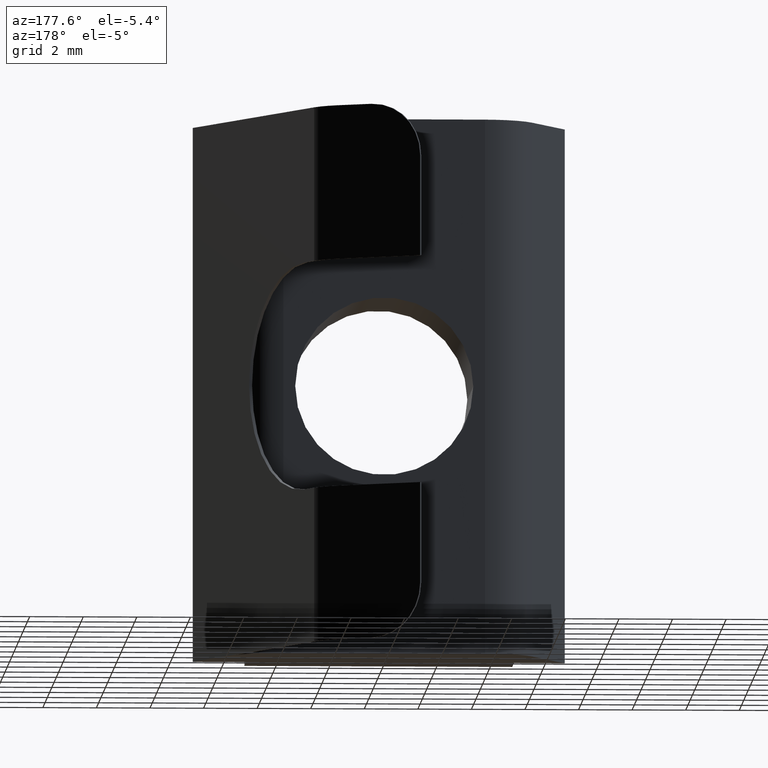
[diagram: clean part render]
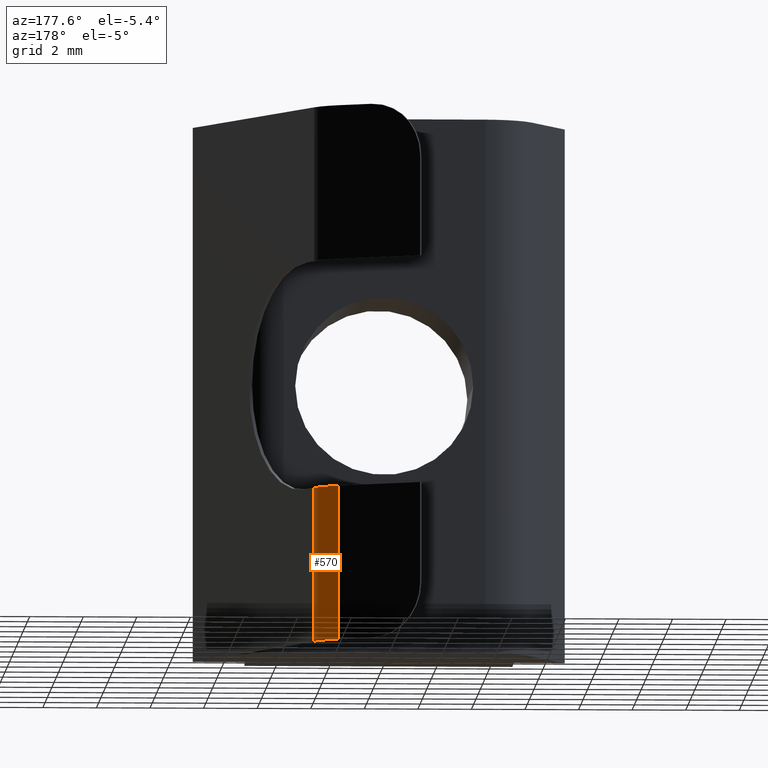
[diagram: same view with one face highlighted and labeled with its STEP entity id]
A machine part, auxiliary view. The second image highlights one B-rep face of the part: STEP entity #570.
In plain terms, the highlighted cylindrical surface (partial cylindrical patch) has radius 2 mm, axis along (0, 0, 1).
Its self-contained STEP definition (entity closure, byte-faithful):
#43=FACE_OUTER_BOUND('',#73,.T.);
#73=EDGE_LOOP('',(#420,#421,#422,#423));
#118=LINE('',#896,#182);
#119=LINE('',#899,#183);
#182=VECTOR('',#713,10.);
#183=VECTOR('',#716,10.);
#232=CIRCLE('',#625,2.);
#236=CIRCLE('',#631,2.);
#258=VERTEX_POINT('',#856);
#260=VERTEX_POINT('',#859);
#270=VERTEX_POINT('',#895);
#271=VERTEX_POINT('',#897);
#316=EDGE_CURVE('',#260,#258,#232,.T.);
#330=EDGE_CURVE('',#258,#270,#118,.T.);
#331=EDGE_CURVE('',#270,#271,#236,.T.);
#332=EDGE_CURVE('',#271,#260,#119,.T.);
#420=ORIENTED_EDGE('',*,*,#316,.T.);
#421=ORIENTED_EDGE('',*,*,#330,.T.);
#422=ORIENTED_EDGE('',*,*,#331,.T.);
#423=ORIENTED_EDGE('',*,*,#332,.T.);
#557=CYLINDRICAL_SURFACE('',#630,2.);
#570=ADVANCED_FACE('',(#43),#557,.T.);
#625=AXIS2_PLACEMENT_3D('',#860,#691,#692);
#630=AXIS2_PLACEMENT_3D('',#894,#711,#712);
#631=AXIS2_PLACEMENT_3D('',#898,#714,#715);
#691=DIRECTION('center_axis',(0.,5.35863314309216E-16,-1.));
#692=DIRECTION('ref_axis',(0.709848187401337,0.704354705275003,0.));
#711=DIRECTION('center_axis',(0.,0.,1.));
#712=DIRECTION('ref_axis',(0.709848187401337,0.704354705275003,0.));
#713=DIRECTION('',(0.,0.,-1.));
#714=DIRECTION('center_axis',(0.,0.,1.));
#715=DIRECTION('ref_axis',(0.709848187401337,0.704354705275003,0.));
#716=DIRECTION('',(0.,0.,1.));
#856=CARTESIAN_POINT('',(2.81159369843194,8.4004194008861,5.75));
#859=CARTESIAN_POINT('',(1.93103694289108,9.28784389332367,5.75));
#860=CARTESIAN_POINT('Origin',(1.02273931643211,7.50599220988618,5.75));
#894=CARTESIAN_POINT('Origin',(1.02273931643211,7.50599220988618,0.));
#895=CARTESIAN_POINT('',(2.81159369843194,8.4004194008861,0.));
#896=CARTESIAN_POINT('',(2.81159369843194,8.4004194008861,0.));
#897=CARTESIAN_POINT('',(1.93103694289108,9.28784389332367,0.));
#898=CARTESIAN_POINT('Origin',(1.02273931643211,7.50599220988618,0.));
#899=CARTESIAN_POINT('',(1.93103694289108,9.28784389332367,0.));